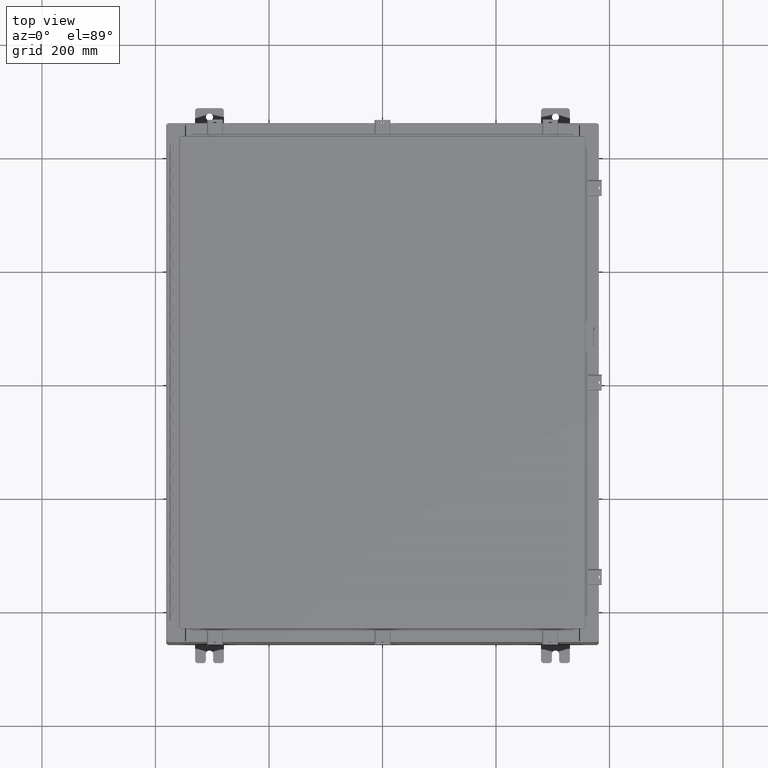
[diagram: clean part render]
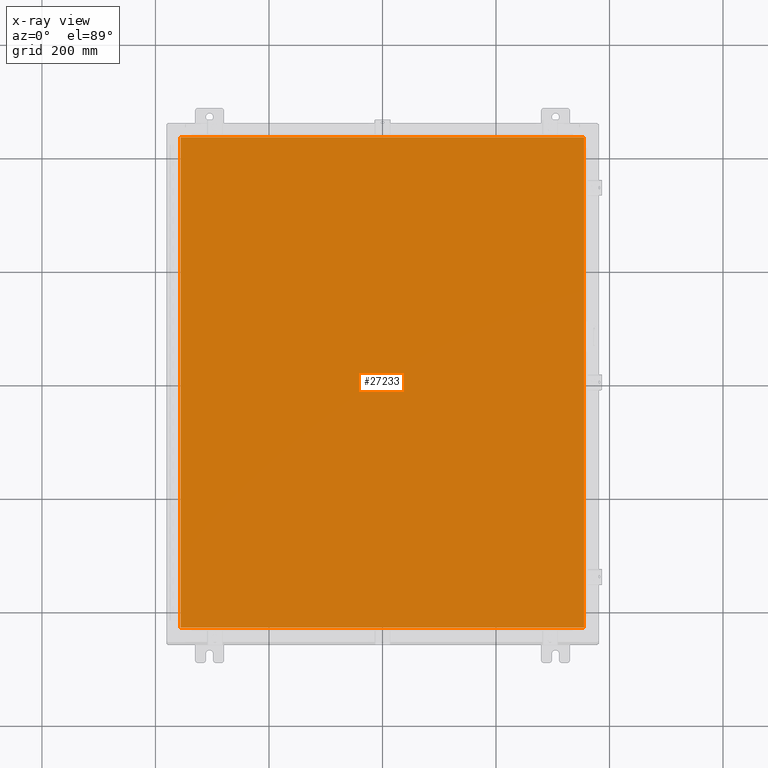
[diagram: x-ray — body ghosted, one internal face saturated and labeled with its STEP entity id]
A machine part, top view, then the same camera in x-ray: the body is ghosted and one INTERNAL B-rep face — a face not visible from any outside direction — is saturated and labeled: STEP entity #27233.
In plain terms, the highlighted planar face has unit normal (0, 0, -1).
Its self-contained STEP definition (entity closure, byte-faithful):
#590 = ORIENTED_EDGE ( 'NONE', *, *, #20909, .F. ) ;
#2240 = CARTESIAN_POINT ( 'NONE',  ( -13.99030000000000700, 17.00630000000000300, -0.07470000000000000300 ) ) ;
#2899 = ORIENTED_EDGE ( 'NONE', *, *, #8726, .F. ) ;
#3284 = DIRECTION ( 'NONE',  ( 1.000000000000000000, -0.0000000000000000000, -0.0000000000000000000 ) ) ;
#3320 = VERTEX_POINT ( 'NONE', #13717 ) ;
#3976 = VERTEX_POINT ( 'NONE', #9337 ) ;
#5208 = CARTESIAN_POINT ( 'NONE',  ( 0.0000000000000000000, 0.0000000000000000000, -0.07470000000000000300 ) ) ;
#8726 = EDGE_CURVE ( 'NONE', #3320, #10808, #42735, .T. ) ;
#9337 = CARTESIAN_POINT ( 'NONE',  ( 13.99029999999999200, 17.00630000000000300, -0.07470000000000000300 ) ) ;
#10808 = VERTEX_POINT ( 'NONE', #24173 ) ;
#12262 = PLANE ( 'NONE',  #42303 ) ;
#13556 = VECTOR ( 'NONE', #29586, 39.37007874015748100 ) ;
#13717 = CARTESIAN_POINT ( 'NONE',  ( -13.99030000000000700, -17.00630000000000000, -0.07470000000000000300 ) ) ;
#16116 = ORIENTED_EDGE ( 'NONE', *, *, #39969, .F. ) ;
#16557 = DIRECTION ( 'NONE',  ( 0.0000000000000000000, 0.0000000000000000000, -1.000000000000000000 ) ) ;
#17477 = FACE_OUTER_BOUND ( 'NONE', #33631, .T. ) ;
#20909 = EDGE_CURVE ( 'NONE', #35941, #3320, #31574, .T. ) ;
#21749 = VECTOR ( 'NONE', #33911, 39.37007874015748100 ) ;
#22000 = CARTESIAN_POINT ( 'NONE',  ( -13.99030000000000700, 17.00630000000000000, -0.07470000000000019700 ) ) ;
#22697 = DIRECTION ( 'NONE',  ( 0.0000000000000000000, -1.000000000000000000, 0.0000000000000000000 ) ) ;
#22723 = VECTOR ( 'NONE', #22697, 39.37007874015748100 ) ;
#24173 = CARTESIAN_POINT ( 'NONE',  ( 13.99029999999999200, -17.00630000000000000, -0.07470000000000000300 ) ) ;
#26593 = CARTESIAN_POINT ( 'NONE',  ( -13.99030000000000700, -17.00630000000000000, -0.07470000000000019700 ) ) ;
#27233 = ADVANCED_FACE ( 'NONE', ( #17477 ), #12262, .T. ) ;
#29586 = DIRECTION ( 'NONE',  ( -1.000000000000000000, -0.0000000000000000000, -0.0000000000000000000 ) ) ;
#29616 = EDGE_CURVE ( 'NONE', #10808, #3976, #39508, .T. ) ;
#30554 = CARTESIAN_POINT ( 'NONE',  ( 13.99029999999999200, -17.00630000000000000, -0.07470000000000019700 ) ) ;
#31574 = LINE ( 'NONE', #22000, #22723 ) ;
#33387 = LINE ( 'NONE', #39552, #13556 ) ;
#33631 = EDGE_LOOP ( 'NONE', ( #36174, #2899, #590, #16116 ) ) ;
#33911 = DIRECTION ( 'NONE',  ( 0.0000000000000000000, 1.000000000000000000, 0.0000000000000000000 ) ) ;
#34964 = DIRECTION ( 'NONE',  ( -1.000000000000000000, 0.0000000000000000000, -0.0000000000000000000 ) ) ;
#35941 = VERTEX_POINT ( 'NONE', #2240 ) ;
#36174 = ORIENTED_EDGE ( 'NONE', *, *, #29616, .F. ) ;
#39508 = LINE ( 'NONE', #30554, #21749 ) ;
#39552 = CARTESIAN_POINT ( 'NONE',  ( 13.99029999999999200, 17.00630000000000300, -0.07470000000000129300 ) ) ;
#39969 = EDGE_CURVE ( 'NONE', #3976, #35941, #33387, .T. ) ;
#41679 = VECTOR ( 'NONE', #3284, 39.37007874015748100 ) ;
#42303 = AXIS2_PLACEMENT_3D ( 'NONE', #5208, #16557, #34964 ) ;
#42735 = LINE ( 'NONE', #26593, #41679 ) ;